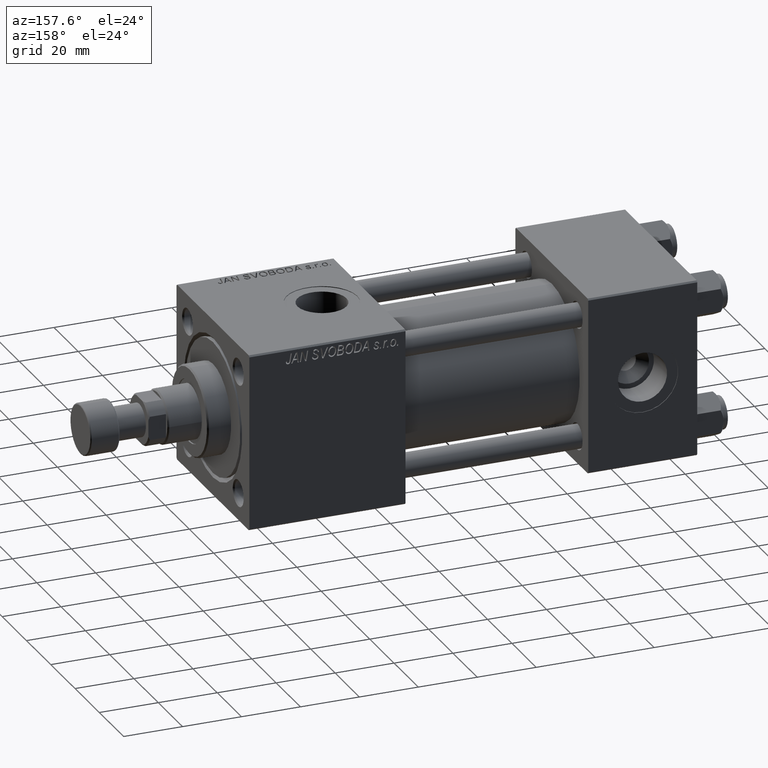
[diagram: clean part render]
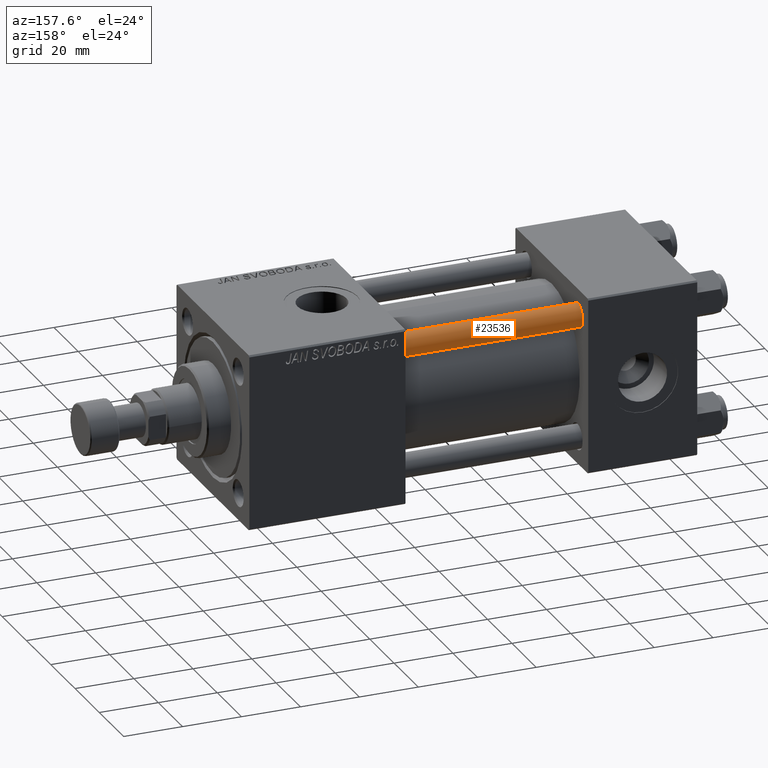
[diagram: same view with one face highlighted and labeled with its STEP entity id]
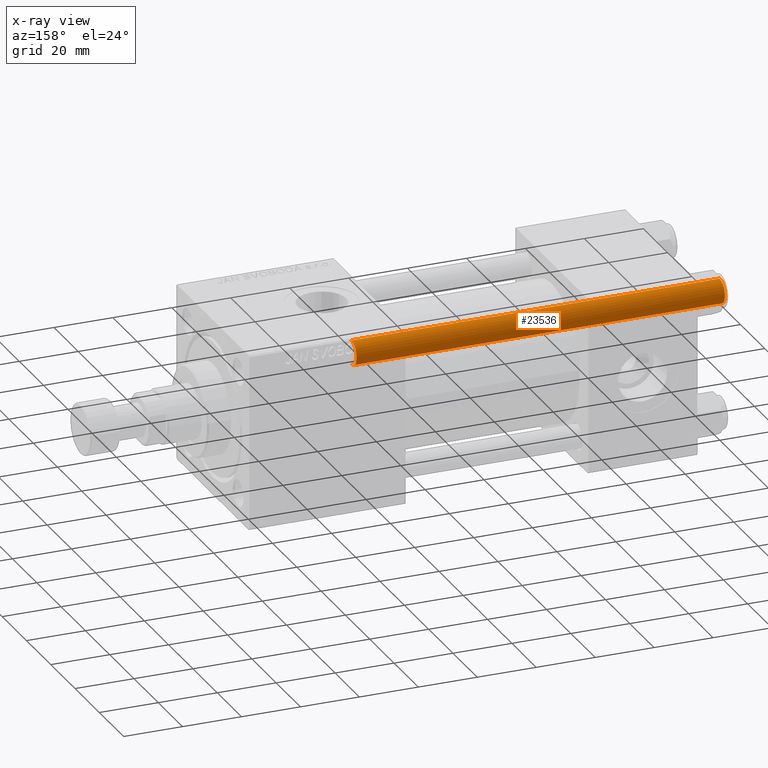
[diagram: x-ray of the same camera — body ghosted, the highlighted face saturated]
A machine part, auxiliary view. The second image highlights one B-rep face of the part: STEP entity #23536.
The next image is the same camera in x-ray: the body ghosted, the highlighted face saturated — about 0% of this face is hidden behind the body in this view.
In plain terms, the highlighted cylindrical surface (edge-blend (fillet) strip) has radius 4 mm, axis along (-1, 0, 0).
Its self-contained STEP definition (entity closure, byte-faithful):
#100 = CARTESIAN_POINT ( 'NONE',  ( 4.000000000000000000, 4.898587196589412829E-16, 126.0000000000000000 ) ) ;
#583 = AXIS2_PLACEMENT_3D ( 'NONE', #38492, #18283, #50733 ) ;
#2533 = CARTESIAN_POINT ( 'NONE',  ( 4.000000000000000000, 4.898587196589412829E-16, 0.5000000000000004441 ) ) ;
#3469 = VECTOR ( 'NONE', #44826, 1000.000000000000000 ) ;
#3568 = VERTEX_POINT ( 'NONE', #32330 ) ;
#6630 = AXIS2_PLACEMENT_3D ( 'NONE', #29173, #45420, #29693 ) ;
#6834 = CYLINDRICAL_SURFACE ( 'NONE', #583, 4.000000000000000000 ) ;
#9143 = CARTESIAN_POINT ( 'NONE',  ( 0.000000000000000000, 0.000000000000000000, 125.5000000000000000 ) ) ;
#12404 = ORIENTED_EDGE ( 'NONE', *, *, #16677, .T. ) ;
#13287 = EDGE_LOOP ( 'NONE', ( #12404, #39493, #45375, #20395 ) ) ;
#14479 = VERTEX_POINT ( 'NONE', #23919 ) ;
#16327 = DIRECTION ( 'NONE',  ( -0.000000000000000000, -0.000000000000000000, -1.000000000000000000 ) ) ;
#16677 = EDGE_CURVE ( 'NONE', #51867, #14479, #20760, .T. ) ;
#17376 = DIRECTION ( 'NONE',  ( 0.000000000000000000, 0.000000000000000000, -1.000000000000000000 ) ) ;
#18283 = DIRECTION ( 'NONE',  ( -0.000000000000000000, -0.000000000000000000, -1.000000000000000000 ) ) ;
#18555 = CIRCLE ( 'NONE', #6630, 4.000000000000000000 ) ;
#18735 = EDGE_CURVE ( 'NONE', #14479, #40831, #28294, .T. ) ;
#20395 = ORIENTED_EDGE ( 'NONE', *, *, #36429, .F. ) ;
#20760 = CIRCLE ( 'NONE', #36017, 4.000000000000000000 ) ;
#23536 = ADVANCED_FACE ( 'NONE', ( #42496 ), #6834, .T. ) ;
#23919 = CARTESIAN_POINT ( 'NONE',  ( 4.000000000000000000, 4.898587196589412829E-16, 125.5000000000000000 ) ) ;
#25901 = EDGE_CURVE ( 'NONE', #40831, #3568, #18555, .T. ) ;
#28294 = LINE ( 'NONE', #100, #51411 ) ;
#28591 = CARTESIAN_POINT ( 'NONE',  ( -4.000000000000000000, 0.000000000000000000, 126.0000000000000000 ) ) ;
#29173 = CARTESIAN_POINT ( 'NONE',  ( 0.000000000000000000, 0.000000000000000000, 0.5000000000000004441 ) ) ;
#29693 = DIRECTION ( 'NONE',  ( 1.000000000000000000, 0.000000000000000000, 0.000000000000000000 ) ) ;
#32330 = CARTESIAN_POINT ( 'NONE',  ( -4.000000000000000000, 0.000000000000000000, 0.5000000000000004441 ) ) ;
#36017 = AXIS2_PLACEMENT_3D ( 'NONE', #9143, #17376, #49842 ) ;
#36429 = EDGE_CURVE ( 'NONE', #51867, #3568, #48565, .T. ) ;
#38492 = CARTESIAN_POINT ( 'NONE',  ( 0.000000000000000000, 0.000000000000000000, 126.0000000000000000 ) ) ;
#39493 = ORIENTED_EDGE ( 'NONE', *, *, #18735, .T. ) ;
#40831 = VERTEX_POINT ( 'NONE', #2533 ) ;
#42496 = FACE_OUTER_BOUND ( 'NONE', #13287, .T. ) ;
#44171 = CARTESIAN_POINT ( 'NONE',  ( -4.000000000000000000, 0.000000000000000000, 125.5000000000000000 ) ) ;
#44826 = DIRECTION ( 'NONE',  ( -0.000000000000000000, -0.000000000000000000, -1.000000000000000000 ) ) ;
#45375 = ORIENTED_EDGE ( 'NONE', *, *, #25901, .T. ) ;
#45420 = DIRECTION ( 'NONE',  ( -0.000000000000000000, -0.000000000000000000, 1.000000000000000000 ) ) ;
#48565 = LINE ( 'NONE', #28591, #3469 ) ;
#49842 = DIRECTION ( 'NONE',  ( 1.000000000000000000, 0.000000000000000000, 0.000000000000000000 ) ) ;
#50733 = DIRECTION ( 'NONE',  ( -1.000000000000000000, 0.000000000000000000, 0.000000000000000000 ) ) ;
#51411 = VECTOR ( 'NONE', #16327, 1000.000000000000000 ) ;
#51867 = VERTEX_POINT ( 'NONE', #44171 ) ;